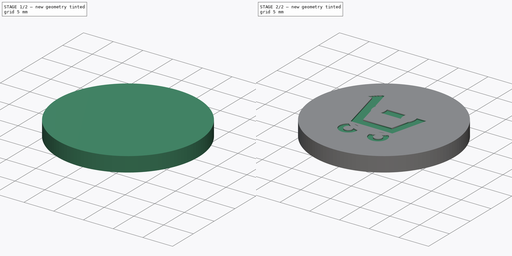
[diagram: build sequence overview — one tinted view per stage of 2, left to right]
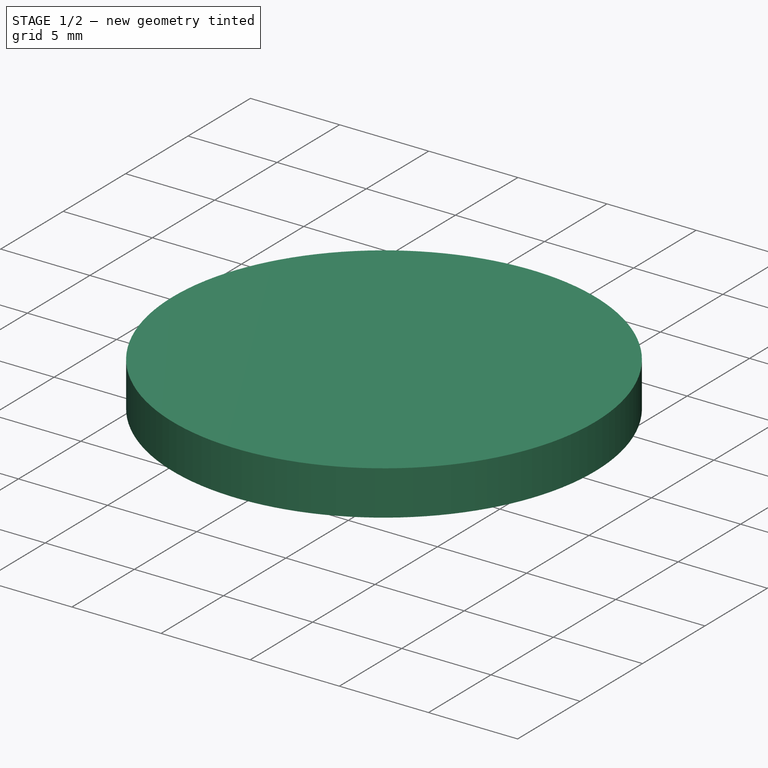
[diagram: stage 1 of 2 — iso view after this stage's code; geometry added in this stage tinted green]
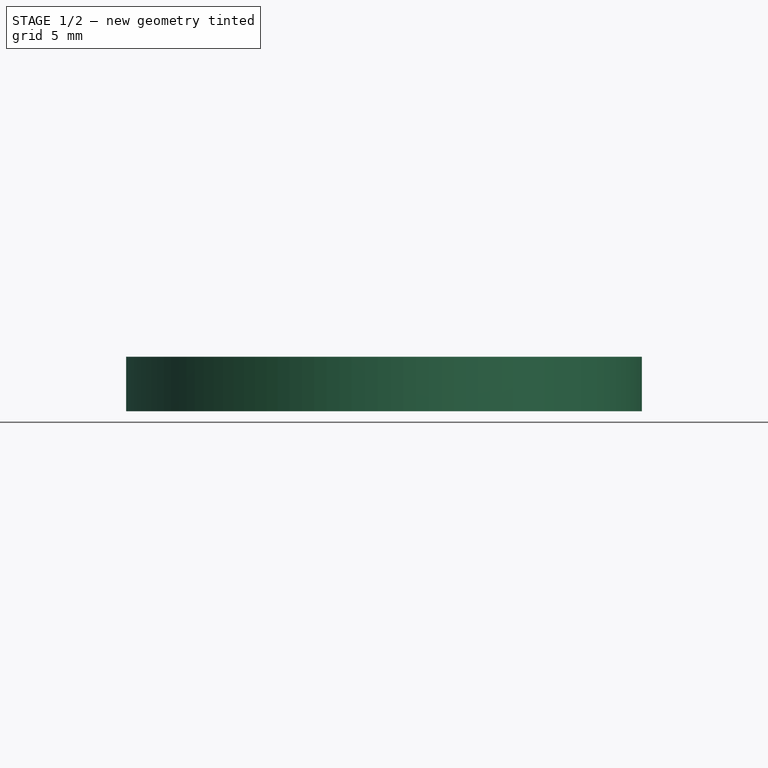
[diagram: stage 1 of 2 — front view after this stage's code; geometry added in this stage tinted green]
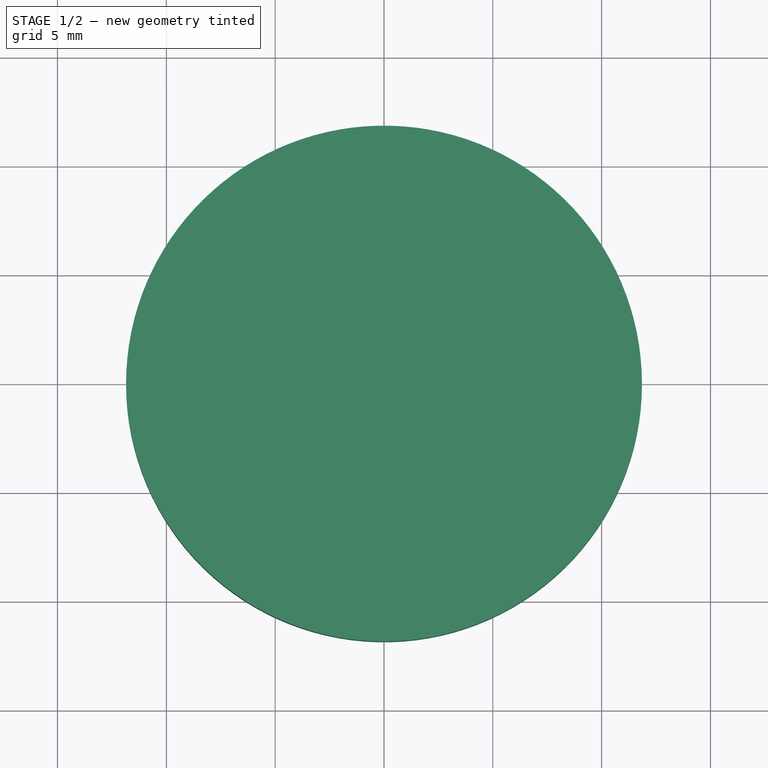
[diagram: stage 1 of 2 — top view after this stage's code; geometry added in this stage tinted green]
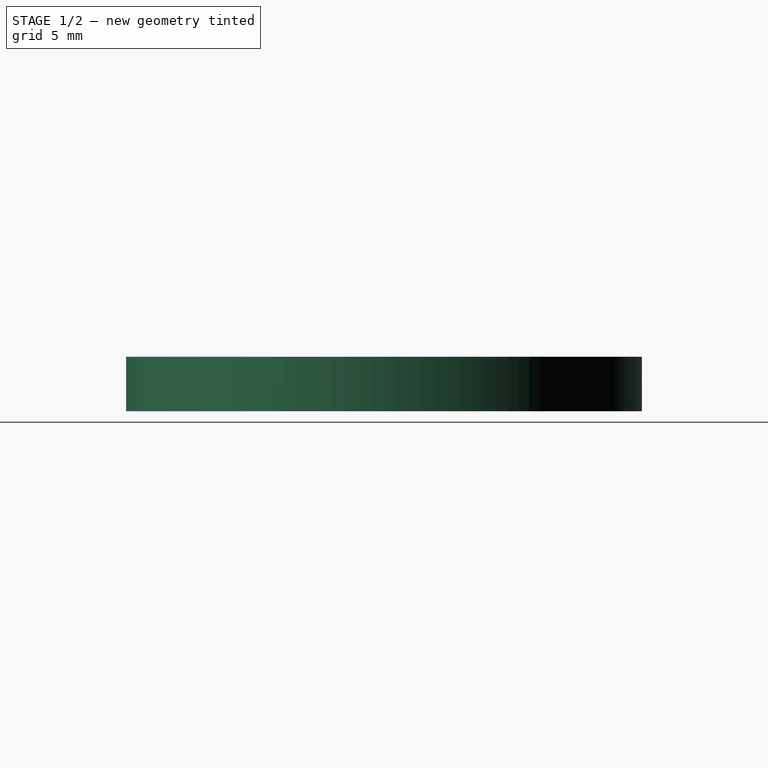
[diagram: stage 1 of 2 — right view after this stage's code; geometry added in this stage tinted green]
FCSTD DOCUMENT  (FreeCAD 0.16R6712 (Git))
Label: coin
License: All rights reserved
LicenseURL: http://en.wikipedia.org/wiki/All_rights_reserved
objects: Sketcher::SketchObject×3, PartDesign::Pocket×3, Part::Cylinder×1
note: 10 computed .brp shape members not serialized (recipe doc carries the construction recipe); baked Part::Feature solids carry a one-line shape summary decoded from their .brp

FEATURE [Part::Cylinder] Cylinder
  Angle = 360
  Height = 2.5
  Radius = 11.85
FEATURE [Sketcher::SketchObject] Sketch004  label="Trolley"
  Placement = pos=(0,0,0) rot=(1,0,0;3.14159rad)
  Support = -> Cylinder [Face3]
  sketch-geometry (26):
    g0: LineSegment StartX=-3.5 StartY=-3 StartZ=0 EndX=3.5 EndY=-3 EndZ=0
    g1: LineSegment StartX=5 StartY=3 StartZ=0 EndX=3.5 EndY=-3 EndZ=0
    g2: GeomPoint [constr] X=0 Y=3 Z=0
    g3: GeomPoint [constr] X=0 Y=-3 Z=0
    g4: LineSegment StartX=-5.5 StartY=5 StartZ=0 EndX=-7.5 EndY=5 EndZ=0
    g5: LineSegment StartX=-7.5 StartY=5 StartZ=0 EndX=-7.5 EndY=6.4 EndZ=0
    g6: LineSegment StartX=-7.5 StartY=6.4 StartZ=0 EndX=-4.40691 EndY=6.4 EndZ=0
    g7: LineSegment StartX=-4.40691 StartY=6.4 StartZ=0 EndX=-3.55691 EndY=3 EndZ=0
    g8: Circle CenterX=-2.5 CenterY=-5 CenterZ=0 NormalX=0 NormalY=0 NormalZ=1 Radius=1.5
    g9: Circle CenterX=2.5 CenterY=-5 CenterZ=0 NormalX=0 NormalY=0 NormalZ=1 Radius=1.5
    g10: LineSegment StartX=-3.55691 StartY=3 StartZ=0 EndX=5 EndY=3 EndZ=0
    g11: LineSegment StartX=-5.5 StartY=5 StartZ=0 EndX=-3.5 EndY=-3 EndZ=0
    g12: LineSegment [constr] StartX=-3.55691 StartY=3 StartZ=0 EndX=-5 EndY=3 EndZ=0
    g13: LineSegment StartX=-3.20691 StartY=1.6 StartZ=0 EndX=-2.40691 EndY=-1.6 EndZ=0
    g14: LineSegment [constr] StartX=-2.40691 StartY=-1.6 StartZ=0 EndX=-2.40691 EndY=-3 EndZ=0
    g15: LineSegment [constr] StartX=-3.55691 StartY=3 StartZ=0 EndX=-4.91511 EndY=2.66045 EndZ=0
    g16: LineSegment StartX=-2.40691 StartY=-1.6 StartZ=0 EndX=2.40691 EndY=-1.6 EndZ=0
    g17: LineSegment [constr] StartX=2.40691 StartY=-1.6 StartZ=0 EndX=3.76511 EndY=-1.93955 EndZ=0
    g18: LineSegment StartX=-3.20691 StartY=1.6 StartZ=0 EndX=3.20691 EndY=1.6 EndZ=0
    g19: LineSegment StartX=3.20691 StartY=1.6 StartZ=0 EndX=2.40691 EndY=-1.6 EndZ=0
    g20: LineSegment [constr] StartX=3.20691 StartY=1.6 StartZ=0 EndX=3.20691 EndY=3 EndZ=0
    g21: Circle CenterX=-2.5 CenterY=-5 CenterZ=0 NormalX=0 NormalY=0 NormalZ=1 Radius=0.7
    g22: Circle CenterX=2.5 CenterY=-5 CenterZ=0 NormalX=0 NormalY=0 NormalZ=1 Radius=0.7
    g23: LineSegment [constr] StartX=-2.5 StartY=-5 StartZ=0 EndX=-1.8 EndY=-5 EndZ=0
    g24: LineSegment [constr] StartX=-1.8 StartY=-5 StartZ=0 EndX=-1 EndY=-5 EndZ=0
    g25: LineSegment [constr] StartX=-2.40691 StartY=-1.6 StartZ=0 EndX=-3.76511 EndY=-1.93955 EndZ=0
  constraints (73):
    c: Horizontal(g0)
    c: Symmetric(g0,g0,g-2)
    c: Coincident(g1,g0)
    c: DistanceX(g0,g0) = 7
    c: PointOnObject(g2,g-2)
    c: PointOnObject(g3,g-2)
    c: PointOnObject(g3,g0)
    c: Symmetric(g2,g3,g-1)
    c: Horizontal(g4)
    c: Coincident(g4,g5)
    c: Vertical(g5)
    c: Coincident(g5,g6)
    c: Horizontal(g6)
    c: Coincident(g6,g7)
    c: DistanceY(g5,g5) = 1.4
    c: DistanceX(g4,g4) = 2
    c: Radius(g8) = 1.5
    c: Equal(g8,g9)
    c: Symmetric(g8,g9,g-2)
    c: DistanceX(g8,g9) = 5
    c: DistanceY(g8,g0) = 2
    c: Coincident(g10,g7)
    c: Coincident(g10,g1)
    c: Horizontal(g10)
    c: PointOnObject(g2,g10)
    c: Coincident(g11,g4)
    c: Coincident(g11,g0)
    c: Parallel(g11,g7)
    c: Coincident(g12,g7)
    c: PointOnObject(g12,g11)
    c: Horizontal(g12)
    c: Symmetric(g12,g1,g-2)
    c: DistanceY(g0,g1) = 6
    c: DistanceX(g12,g1) = 10
    c: DistanceY(g0,g4) = 8
    c: Coincident(g14,g13)
    c: PointOnObject(g14,g0)
    c: Vertical(g14)
    c: Coincident(g15,g7)
    c: PointOnObject(g15,g11)
    c: Perpendicular(g11,g15)
    c: Equal(g15,g5)
    c: Parallel(g13,g11)
    c: Coincident(g16,g13)
    c: Horizontal(g16)
    c: Coincident(g17,g16)
    c: PointOnObject(g17,g1)
    c: Perpendicular(g17,g1)
    c: Equal(g17,g14)
    c: Horizontal(g18)
    c: Coincident(g18,g19)
    c: Coincident(g19,g16)
    c: Parallel(g19,g1)
    c: Coincident(g20,g18)
    c: PointOnObject(g20,g10)
    c: Vertical(g20)
    c: Equal(g20,g17)
    c: Coincident(g21,g8)
    c: Coincident(g22,g9)
    c: Equal(g21,g22)
    c: Coincident(g23,g8)
    c: PointOnObject(g23,g21)
    c: Horizontal(g23)
    c: PointOnObject(g24,g8)
    c: Horizontal(g24)
    c: Coincident(g23,g24)
    c: Coincident(g25,g13)
    c: PointOnObject(g25,g11)
    c: Perpendicular(g11,g25)
    c: Equal(g25,g14)
    c: DistanceY(g14,g14) = 1.4
    c: Coincident(g13,g18)
    c: DistanceX(g24,g24) = 0.8
FEATURE [PartDesign::Pocket] Pocket  label="Down"
  Length = 0.2
  Sketch = -> Sketch004
  Type = 0
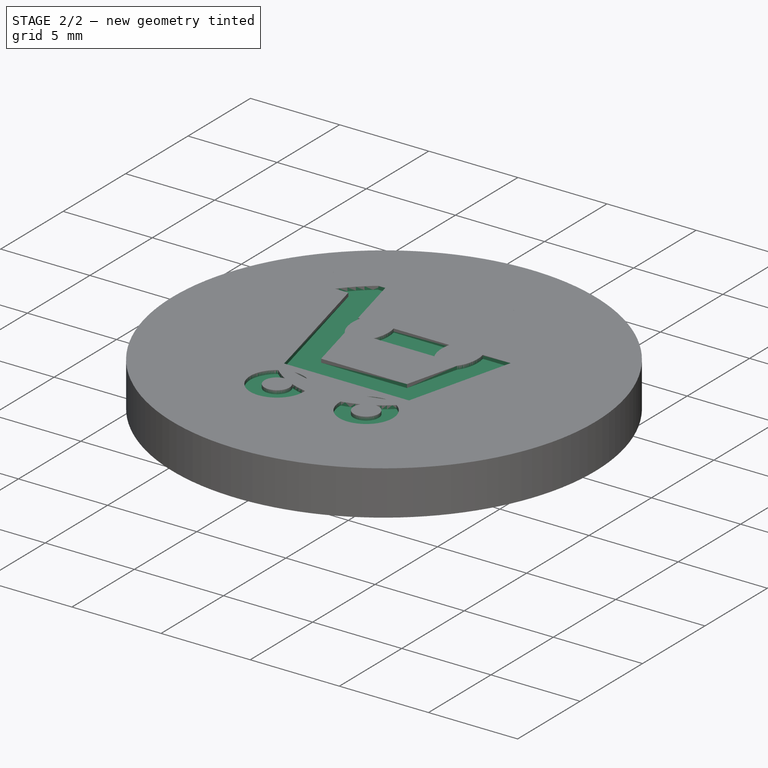
[diagram: stage 2 of 2 — iso view after this stage's code; geometry added in this stage tinted green]
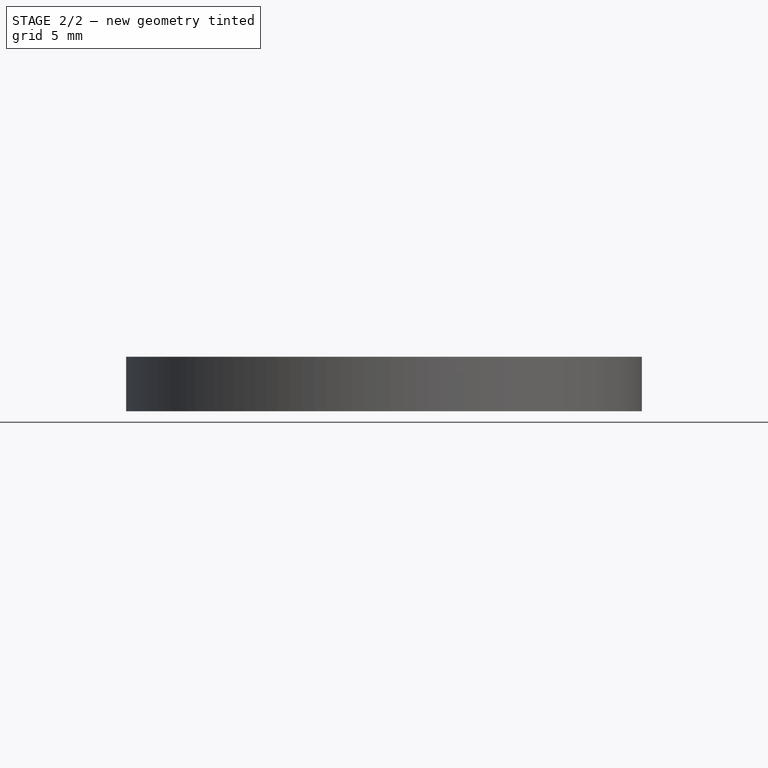
[diagram: stage 2 of 2 — front view after this stage's code; geometry added in this stage tinted green]
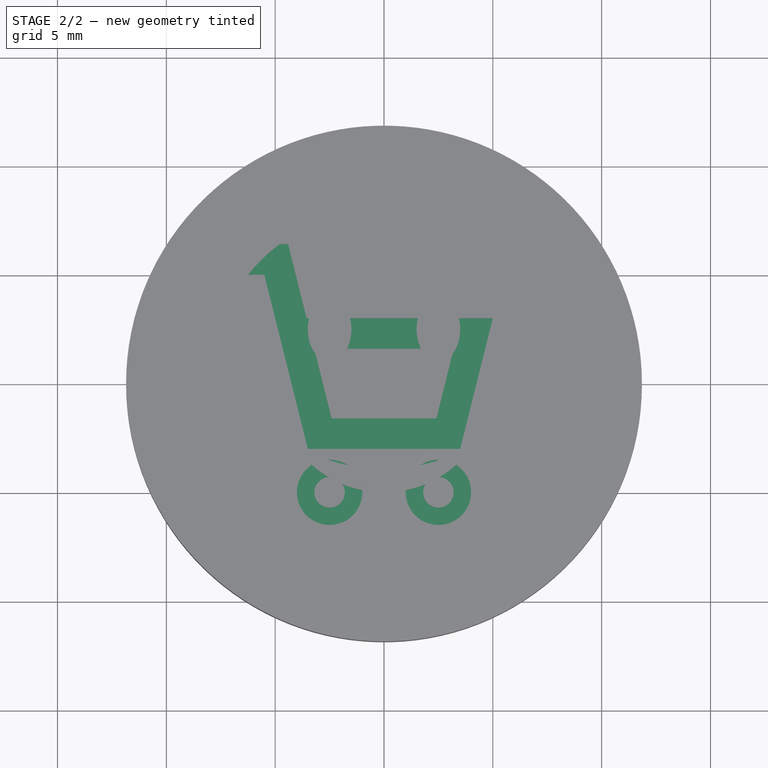
[diagram: stage 2 of 2 — top view after this stage's code; geometry added in this stage tinted green]
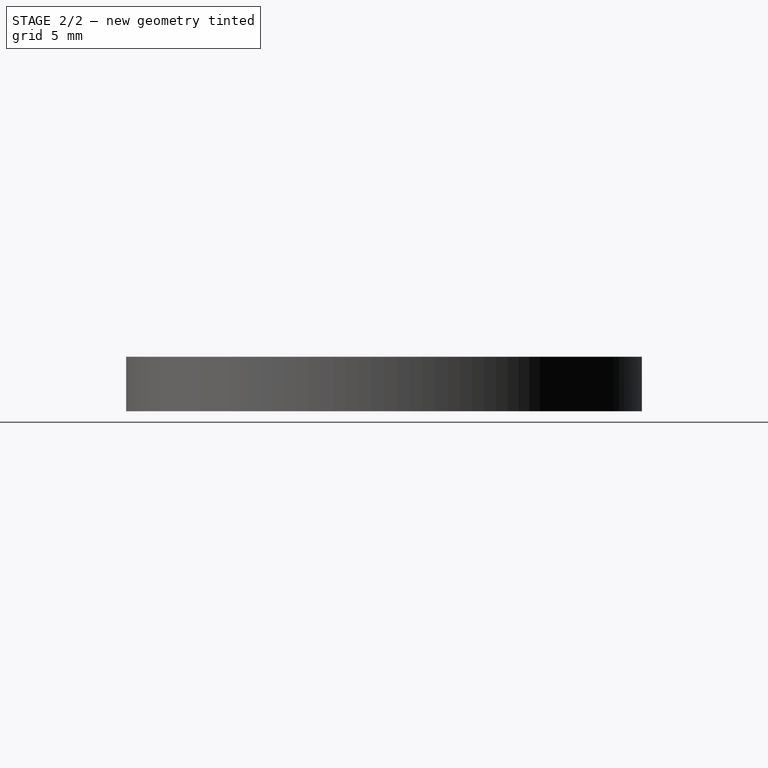
[diagram: stage 2 of 2 — right view after this stage's code; geometry added in this stage tinted green]
FEATURE [Sketcher::SketchObject] Sketch  label="Smiley"
  Placement = pos=(0,0,2.5) rot=(0,0,1;0rad)
  Support = -> Pocket [Face2]
  sketch-geometry (17):
    g0: Circle CenterX=0 CenterY=0 CenterZ=0 NormalX=0 NormalY=0 NormalZ=1 Radius=8
    g1: ArcOfCircle CenterX=0 CenterY=0 CenterZ=0 NormalX=0 NormalY=0 NormalZ=1 Radius=5 StartAngle=3.92699 EndAngle=5.49779
    g2: LineSegment [constr] StartX=0 StartY=0 StartZ=0 EndX=-3.53553 EndY=-3.53553 EndZ=0
    g3: LineSegment [constr] StartX=0 StartY=0 StartZ=0 EndX=3.53553 EndY=-3.53553 EndZ=0
    g4: ArcOfCircle CenterX=-3.39411 CenterY=-3.39411 CenterZ=0 NormalX=0 NormalY=0 NormalZ=1 Radius=0.2 StartAngle=1.14406 EndAngle=3.92699
    g5: ArcOfCircle CenterX=3.39411 CenterY=-3.39411 CenterZ=0 NormalX=0 NormalY=0 NormalZ=1 Radius=0.2 StartAngle=5.49779 EndAngle=8.28072
    g6: ArcOfCircle CenterX=0 CenterY=4.07047 CenterZ=0 NormalX=0 NormalY=0 NormalZ=1 Radius=8 StartAngle=4.28564 EndAngle=5.13914
    g7: Ellipse CenterX=-2.5 CenterY=2.5 CenterZ=0 NormalX=0 NormalY=0 NormalZ=1 MajorRadius=1.5 MinorRadius=1 AngleXU=-1.5708
    g8: LineSegment [constr] StartX=-2.5 StartY=1 StartZ=0 EndX=-2.5 EndY=4 EndZ=0
    g9: LineSegment [constr] StartX=-1.5 StartY=2.5 StartZ=0 EndX=-3.5 EndY=2.5 EndZ=0
    g10: GeomPoint [constr] X=-2.5 Y=1.38197 Z=0
    g11: GeomPoint [constr] X=-2.5 Y=3.61803 Z=0
    g12: Ellipse CenterX=2.5 CenterY=2.5 CenterZ=0 NormalX=0 NormalY=0 NormalZ=1 MajorRadius=1.5 MinorRadius=1 AngleXU=-1.5708
    g13: LineSegment [constr] StartX=2.5 StartY=1 StartZ=0 EndX=2.5 EndY=4 EndZ=0
    g14: LineSegment [constr] StartX=3.5 StartY=2.5 StartZ=0 EndX=1.5 EndY=2.5 EndZ=0
    g15: GeomPoint [constr] X=2.5 Y=1.38197 Z=0
    g16: GeomPoint [constr] X=2.5 Y=3.61803 Z=0
  constraints (33):
    c: Coincident(g0,g-1)
    c: Radius(g0) = 8
    c: Coincident(g1,g-1)
    c: Coincident(g2,g-1)
    c: Coincident(g2,g1)
    c: Coincident(g3,g1)
    c: Symmetric(g1,g1,g-2)
    c: Radius(g1) = 5
    c: Angle(g2,g3) = 1.5708
    c: Coincident(g0,g3)
    c: PointOnObject(g4,g2)
    c: Coincident(g4,g1)
    c: PointOnObject(g5,g3)
    c: Coincident(g5,g1)
    c: PointOnObject(g6,g-2)
    c: Coincident(g6,g4)
    c: Coincident(g6,g5)
    c: Tangent(g4,g6)
    c: Tangent(g6,g5)
    c: Radius(g4) = 0.2
    c: Equal(g4,g5)
    c: Radius(g6) = 8
    c: InternalAlignment(g8-g11 -> g7) x4
    c: InternalAlignment(g13-g16 -> g12) x4
    c: Vertical(g8)
    c: Vertical(g13)
    c: Symmetric(g12,g7,g-2)
    c: DistanceX(g7,g12) = 5
    c: Equal(g8,g13)
    c: Equal(g9,g14)
    c: DistanceY(g-1,g7) = 2.5
    c: DistanceX(g9,g9) = 2
    c: DistanceY(g8,g8) = 3
FEATURE [Sketcher::SketchObject] Sketch005  label="Trolley001"
  Placement = pos=(0,0,2.5) rot=(0,0,1;0rad)
  Support = -> Pocket [Face2]
  sketch-geometry (26):
    g0: LineSegment StartX=-3.5 StartY=-3 StartZ=0 EndX=3.5 EndY=-3 EndZ=0
    g1: LineSegment StartX=5 StartY=3 StartZ=0 EndX=3.5 EndY=-3 EndZ=0
    g2: GeomPoint [constr] X=0 Y=3 Z=0
    g3: GeomPoint [constr] X=0 Y=-3 Z=0
    g4: LineSegment StartX=-5.5 StartY=5 StartZ=0 EndX=-7.5 EndY=5 EndZ=0
    g5: LineSegment StartX=-7.5 StartY=5 StartZ=0 EndX=-7.5 EndY=6.4 EndZ=0
    g6: LineSegment StartX=-7.5 StartY=6.4 StartZ=0 EndX=-4.40691 EndY=6.4 EndZ=0
    g7: LineSegment StartX=-4.40691 StartY=6.4 StartZ=0 EndX=-3.55691 EndY=3 EndZ=0
    g8: Circle CenterX=-2.5 CenterY=-5 CenterZ=0 NormalX=0 NormalY=0 NormalZ=1 Radius=1.5
    g9: Circle CenterX=2.5 CenterY=-5 CenterZ=0 NormalX=0 NormalY=0 NormalZ=1 Radius=1.5
    g10: LineSegment StartX=-3.55691 StartY=3 StartZ=0 EndX=5 EndY=3 EndZ=0
    g11: LineSegment StartX=-5.5 StartY=5 StartZ=0 EndX=-3.5 EndY=-3 EndZ=0
    g12: LineSegment [constr] StartX=-3.55691 StartY=3 StartZ=0 EndX=-5 EndY=3 EndZ=0
    g13: LineSegment StartX=-3.20691 StartY=1.6 StartZ=0 EndX=-2.40691 EndY=-1.6 EndZ=0
    g14: LineSegment [constr] StartX=-2.40691 StartY=-1.6 StartZ=0 EndX=-2.40691 EndY=-3 EndZ=0
    g15: LineSegment [constr] StartX=-3.55691 StartY=3 StartZ=0 EndX=-4.91511 EndY=2.66045 EndZ=0
    g16: LineSegment StartX=-2.40691 StartY=-1.6 StartZ=0 EndX=2.40691 EndY=-1.6 EndZ=0
    g17: LineSegment [constr] StartX=2.40691 StartY=-1.6 StartZ=0 EndX=3.76511 EndY=-1.93955 EndZ=0
    g18: LineSegment StartX=-3.20691 StartY=1.6 StartZ=0 EndX=3.20691 EndY=1.6 EndZ=0
    g19: LineSegment StartX=3.20691 StartY=1.6 StartZ=0 EndX=2.40691 EndY=-1.6 EndZ=0
    g20: LineSegment [constr] StartX=3.20691 StartY=1.6 StartZ=0 EndX=3.20691 EndY=3 EndZ=0
    g21: Circle CenterX=-2.5 CenterY=-5 CenterZ=0 NormalX=0 NormalY=0 NormalZ=1 Radius=0.7
    g22: Circle CenterX=2.5 CenterY=-5 CenterZ=0 NormalX=0 NormalY=0 NormalZ=1 Radius=0.7
    g23: LineSegment [constr] StartX=-2.5 StartY=-5 StartZ=0 EndX=-1.8 EndY=-5 EndZ=0
    g24: LineSegment [constr] StartX=-1.8 StartY=-5 StartZ=0 EndX=-1 EndY=-5 EndZ=0
    g25: LineSegment [constr] StartX=-2.40691 StartY=-1.6 StartZ=0 EndX=-3.76511 EndY=-1.93955 EndZ=0
  constraints (73):
    c: Horizontal(g0)
    c: Symmetric(g0,g0,g-2)
    c: Coincident(g1,g0)
    c: DistanceX(g0,g0) = 7
    c: PointOnObject(g2,g-2)
    c: PointOnObject(g3,g-2)
    c: PointOnObject(g3,g0)
    c: Symmetric(g2,g3,g-1)
    c: Horizontal(g4)
    c: Coincident(g4,g5)
    c: Vertical(g5)
    c: Coincident(g5,g6)
    c: Horizontal(g6)
    c: Coincident(g6,g7)
    c: DistanceY(g5,g5) = 1.4
    c: DistanceX(g4,g4) = 2
    c: Radius(g8) = 1.5
    c: Equal(g8,g9)
    c: Symmetric(g8,g9,g-2)
    c: DistanceX(g8,g9) = 5
    c: DistanceY(g8,g0) = 2
    c: Coincident(g10,g7)
    c: Coincident(g10,g1)
    c: Horizontal(g10)
    c: PointOnObject(g2,g10)
    c: Coincident(g11,g4)
    c: Coincident(g11,g0)
    c: Parallel(g11,g7)
    c: Coincident(g12,g7)
    c: PointOnObject(g12,g11)
    c: Horizontal(g12)
    c: Symmetric(g12,g1,g-2)
    c: DistanceY(g0,g1) = 6
    c: DistanceX(g12,g1) = 10
    c: DistanceY(g0,g4) = 8
    c: Coincident(g14,g13)
    c: PointOnObject(g14,g0)
    c: Vertical(g14)
    c: Coincident(g15,g7)
    c: PointOnObject(g15,g11)
    c: Perpendicular(g11,g15)
    c: Equal(g15,g5)
    c: Parallel(g13,g11)
    c: Coincident(g16,g13)
    c: Horizontal(g16)
    c: Coincident(g17,g16)
    c: PointOnObject(g17,g1)
    c: Perpendicular(g17,g1)
    c: Equal(g17,g14)
    c: Horizontal(g18)
    c: Coincident(g18,g19)
    c: Coincident(g19,g16)
    c: Parallel(g19,g1)
    c: Coincident(g20,g18)
    c: PointOnObject(g20,g10)
    c: Vertical(g20)
    c: Equal(g20,g17)
    c: Coincident(g21,g8)
    c: Coincident(g22,g9)
    c: Equal(g21,g22)
    c: Coincident(g23,g8)
    c: PointOnObject(g23,g21)
    c: Horizontal(g23)
    c: PointOnObject(g24,g8)
    c: Horizontal(g24)
    c: Coincident(g23,g24)
    c: Coincident(g25,g13)
    c: PointOnObject(g25,g11)
    c: Perpendicular(g11,g25)
    c: Equal(g25,g14)
    c: DistanceY(g14,g14) = 1.4
    c: Coincident(g13,g18)
    c: DistanceX(g24,g24) = 0.8
FEATURE [PartDesign::Pocket] Pocket001  label="UP_Smiley"
  Length = 0.2
  Sketch = -> Sketch
  Type = 0
FEATURE [PartDesign::Pocket] Pocket002  label="UP_Trolley"
  Length = 0.2
  Sketch = -> Sketch005
  Type = 0
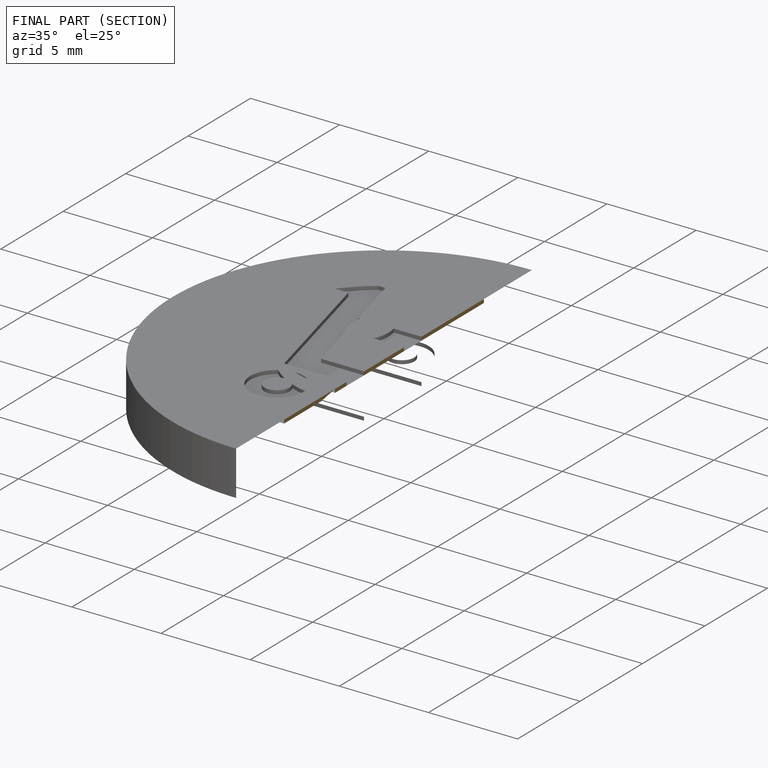
[diagram: finished part — half-section view (interior)]
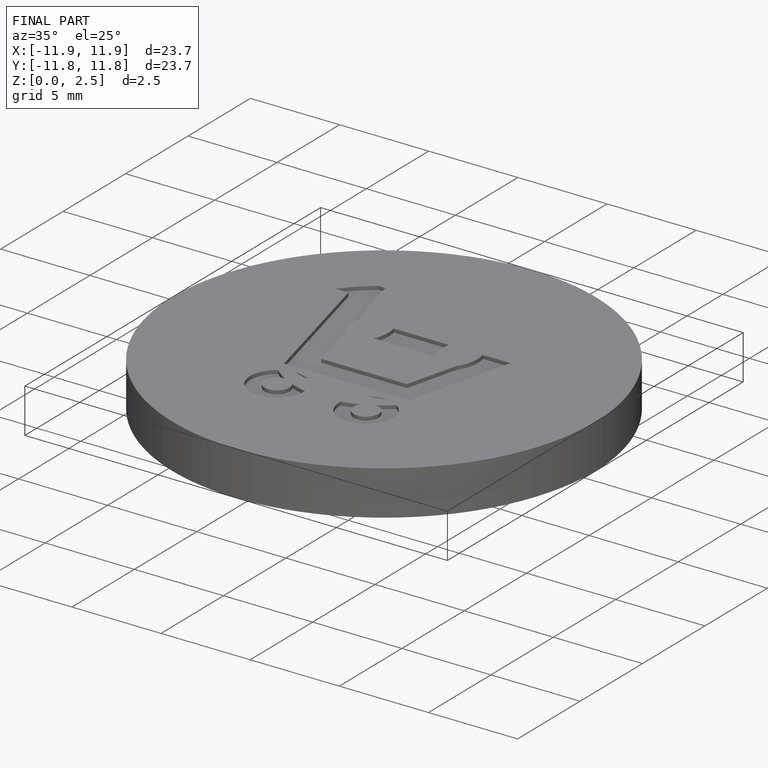
[diagram: finished part — iso view with bounding-box wireframe]
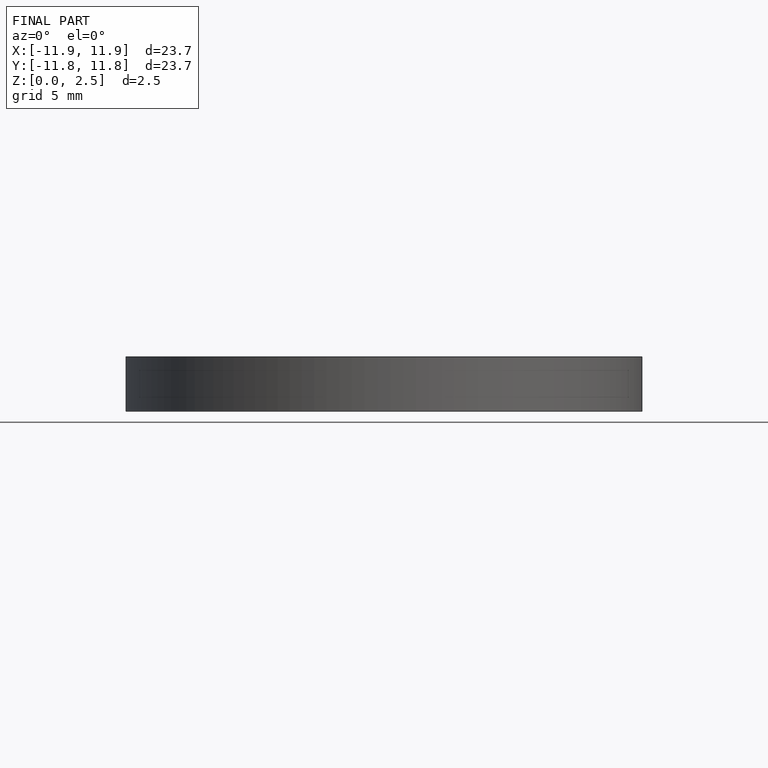
[diagram: finished part — front view with bounding-box wireframe]
